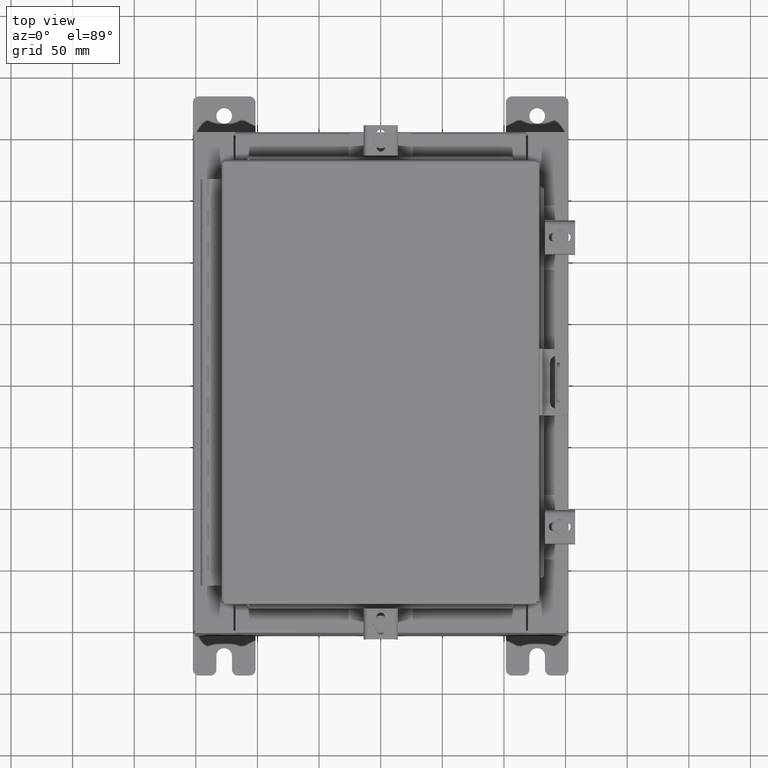
[diagram: clean part render]
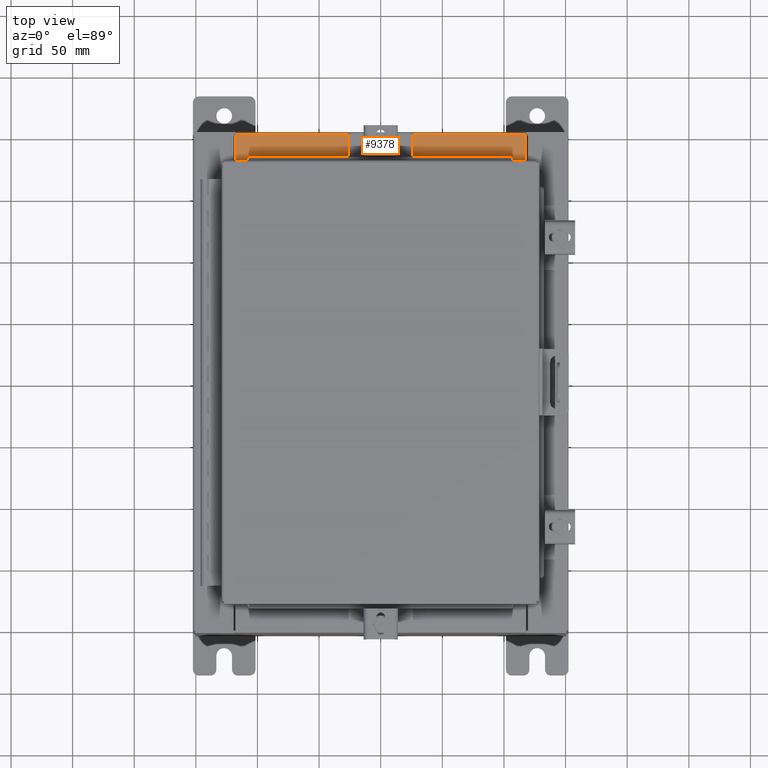
[diagram: same view with one face highlighted and labeled with its STEP entity id]
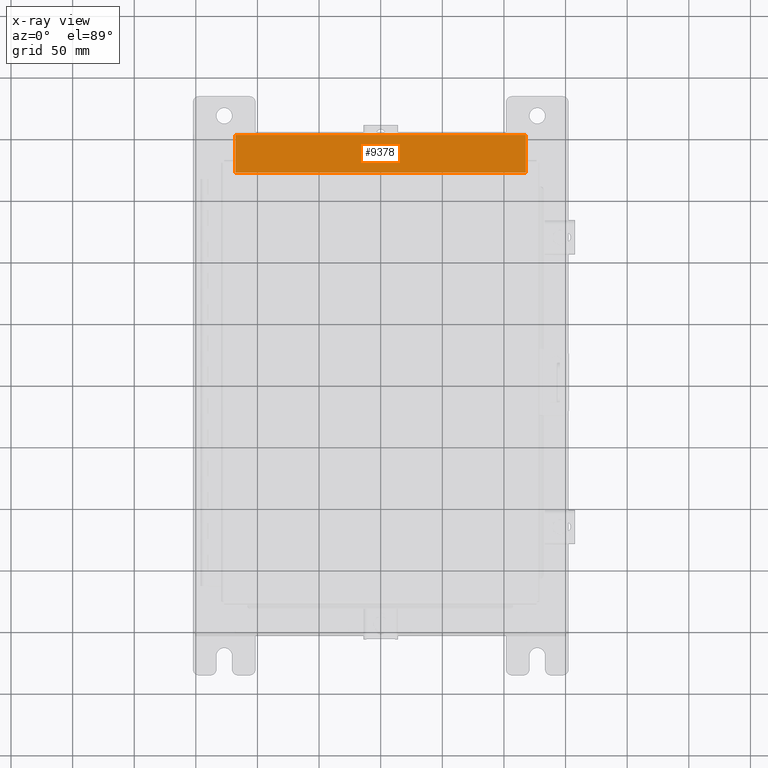
[diagram: x-ray of the same camera — body ghosted, the highlighted face saturated]
A machine part, top view. The second image highlights one B-rep face of the part: STEP entity #9378.
The next image is the same camera in x-ray: the body ghosted, the highlighted face saturated — about 0% of this face is hidden behind the body in this view.
In plain terms, the highlighted planar face has unit normal (0, 0, 1).
Its self-contained STEP definition (entity closure, byte-faithful):
#471 = CARTESIAN_POINT ( 'NONE',  ( 4.637200000000001800, -1.287299999999999900, 3.000000000000004000 ) ) ;
#1369 = VERTEX_POINT ( 'NONE', #15210 ) ;
#1809 = LINE ( 'NONE', #10802, #22537 ) ;
#2994 = EDGE_CURVE ( 'NONE', #15492, #7232, #17180, .T. ) ;
#3066 = EDGE_CURVE ( 'NONE', #1369, #7232, #1809, .T. ) ;
#4390 = ORIENTED_EDGE ( 'NONE', *, *, #18534, .F. ) ;
#4796 = ORIENTED_EDGE ( 'NONE', *, *, #25957, .F. ) ;
#7158 = VECTOR ( 'NONE', #16519, 39.37007874015748100 ) ;
#7232 = VERTEX_POINT ( 'NONE', #10850 ) ;
#8706 = DIRECTION ( 'NONE',  ( -1.000000000000000000, 0.0000000000000000000, 0.0000000000000000000 ) ) ;
#8835 = AXIS2_PLACEMENT_3D ( 'NONE', #10235, #13128, #21278 ) ;
#9378 = ADVANCED_FACE ( 'NONE', ( #19236 ), #12091, .T. ) ;
#10120 = EDGE_LOOP ( 'NONE', ( #17535, #4390, #4796, #15565 ) ) ;
#10235 = CARTESIAN_POINT ( 'NONE',  ( 0.0000000000000000000, 1.069354855923099500E-014, 3.000000000000000400 ) ) ;
#10773 = DIRECTION ( 'NONE',  ( -1.000000000000000000, 0.0000000000000000000, 0.0000000000000000000 ) ) ;
#10802 = CARTESIAN_POINT ( 'NONE',  ( 0.0000000000000000000, -0.08770000000000026400, 3.000000000000000900 ) ) ;
#10820 = LINE ( 'NONE', #471, #25668 ) ;
#10850 = CARTESIAN_POINT ( 'NONE',  ( -4.637199999999999100, -0.08770000000000026400, 3.000000000000000400 ) ) ;
#12091 = PLANE ( 'NONE',  #8835 ) ;
#13128 = DIRECTION ( 'NONE',  ( 0.0000000000000000000, 3.566381192773190000E-015, 1.000000000000000000 ) ) ;
#13803 = VECTOR ( 'NONE', #21931, 39.37007874015748100 ) ;
#15210 = CARTESIAN_POINT ( 'NONE',  ( 4.637200000000001800, -0.08769999999999993100, 3.000000000000000400 ) ) ;
#15492 = VERTEX_POINT ( 'NONE', #25936 ) ;
#15565 = ORIENTED_EDGE ( 'NONE', *, *, #3066, .T. ) ;
#16519 = DIRECTION ( 'NONE',  ( -0.0000000000000000000, 1.000000000000000000, -3.566381192773190000E-015 ) ) ;
#17180 = LINE ( 'NONE', #20740, #7158 ) ;
#17535 = ORIENTED_EDGE ( 'NONE', *, *, #2994, .F. ) ;
#18534 = EDGE_CURVE ( 'NONE', #22808, #15492, #10820, .T. ) ;
#18602 = CARTESIAN_POINT ( 'NONE',  ( 4.637200000000001800, -1.287299999999999900, 3.000000000000004400 ) ) ;
#19236 = FACE_OUTER_BOUND ( 'NONE', #10120, .T. ) ;
#20740 = CARTESIAN_POINT ( 'NONE',  ( -4.637199999999999100, -0.07469999999999973900, 3.000000000000000400 ) ) ;
#21278 = DIRECTION ( 'NONE',  ( 0.0000000000000000000, -1.000000000000000000, 3.566381192773190000E-015 ) ) ;
#21931 = DIRECTION ( 'NONE',  ( -0.0000000000000000000, -1.000000000000000000, 3.566381192773190000E-015 ) ) ;
#22537 = VECTOR ( 'NONE', #10773, 39.37007874015748100 ) ;
#22808 = VERTEX_POINT ( 'NONE', #18602 ) ;
#23975 = CARTESIAN_POINT ( 'NONE',  ( 4.637200000000001800, -1.300299999999999800, 3.000000000000004400 ) ) ;
#24598 = LINE ( 'NONE', #23975, #13803 ) ;
#25668 = VECTOR ( 'NONE', #8706, 39.37007874015748100 ) ;
#25936 = CARTESIAN_POINT ( 'NONE',  ( -4.637199999999999100, -1.287299999999999200, 3.000000000000004400 ) ) ;
#25957 = EDGE_CURVE ( 'NONE', #1369, #22808, #24598, .T. ) ;